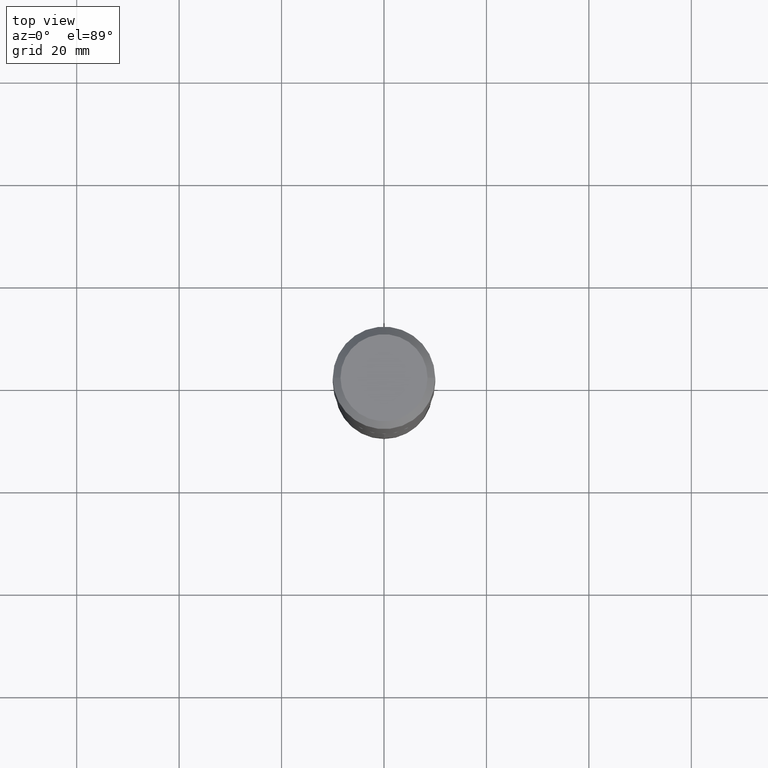
[diagram: clean part render]
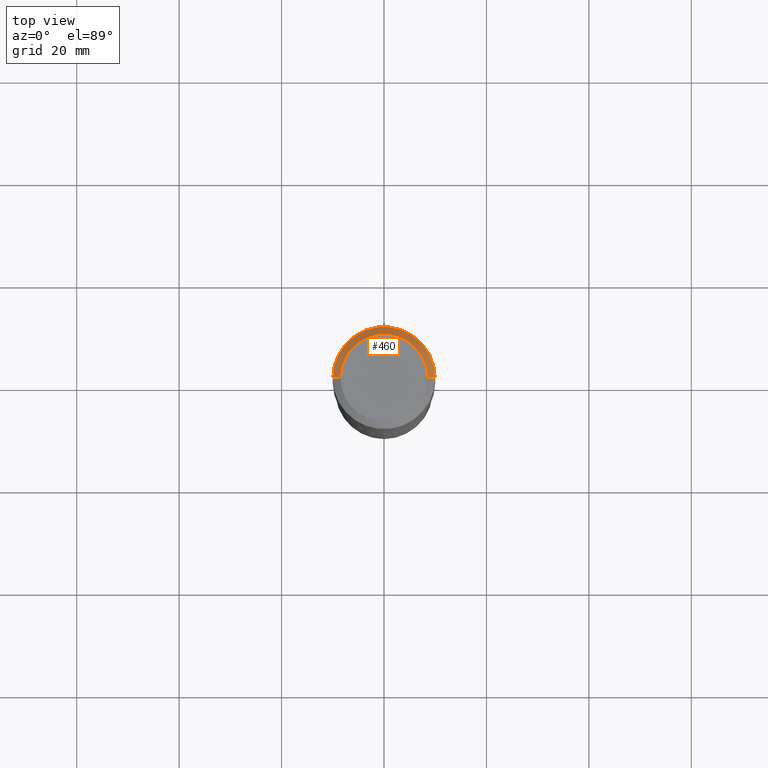
[diagram: same view with one face highlighted and labeled with its STEP entity id]
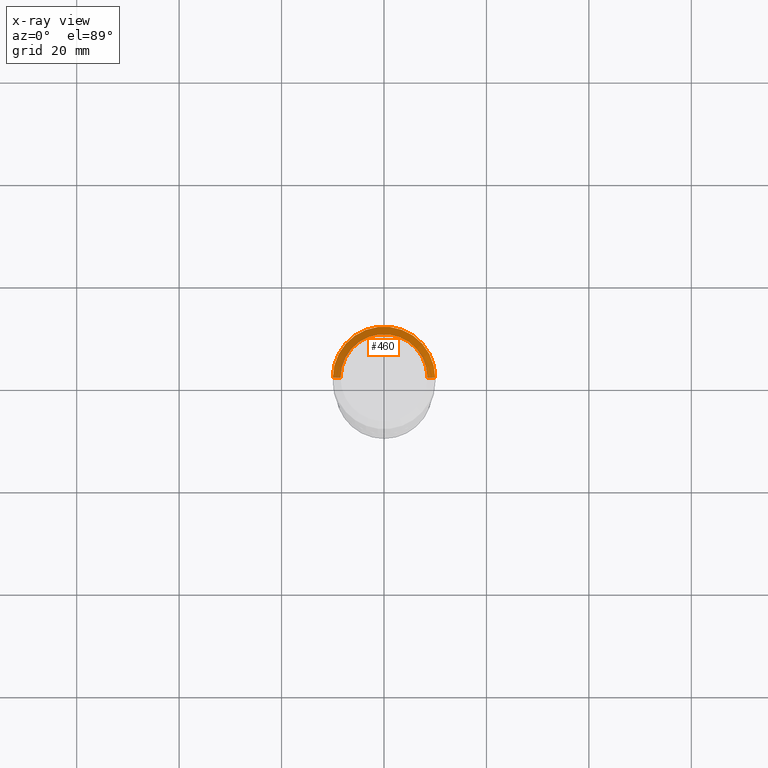
[diagram: x-ray of the same camera — body ghosted, the highlighted face saturated]
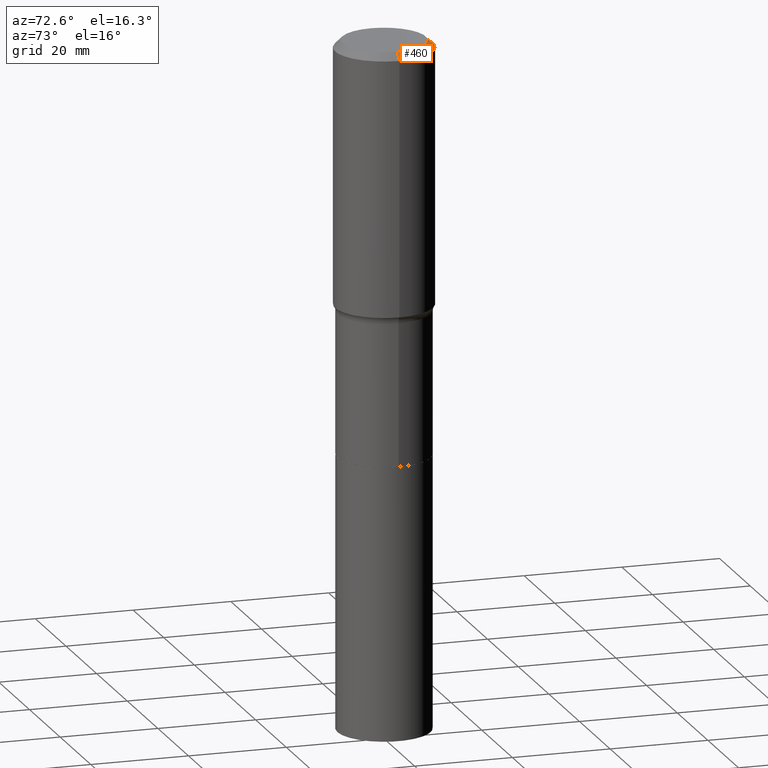
[diagram: same view with one face highlighted and labeled with its STEP entity id]
A machine part, top view. The second image highlights one B-rep face of the part: STEP entity #460.
The next image is the same camera in x-ray: the body ghosted, the highlighted face saturated — about 0% of this face is hidden behind the body in this view.
A second angle (auxiliary view) of the same face is appended — the face is thin or edge-on in the first view.
In plain terms, the highlighted conical surface has half-angle 45 deg.
Its self-contained STEP definition (entity closure, byte-faithful):
#22 = DIRECTION ( 'NONE',  ( 1.000000000000000000, -6.982962677686267499E-15, 4.876152824003125403E-29 ) ) ;
#28 = FACE_OUTER_BOUND ( 'NONE', #59, .T. ) ;
#35 = LINE ( 'NONE', #313, #211 ) ;
#36 = CARTESIAN_POINT ( 'NONE',  ( 0.3346450000000000258, -2.601499422326145188E-15, 4.096137381465387809E-18 ) ) ;
#42 = CIRCLE ( 'NONE', #270, 0.3937000000000000499 ) ;
#43 = CIRCLE ( 'NONE', #445, 0.3346450000000000258 ) ;
#44 = CARTESIAN_POINT ( 'NONE',  ( 1.444171603492641547E-30, -2.061894304653832726E-16, -0.05905500000000037109 ) ) ;
#54 = CARTESIAN_POINT ( 'NONE',  ( -0.3346450000000000258, 2.439908260507010921E-15, 4.096137381431418257E-18 ) ) ;
#59 = EDGE_LOOP ( 'NONE', ( #336, #402, #292, #306 ) ) ;
#73 = EDGE_CURVE ( 'NONE', #465, #307, #42, .T. ) ;
#96 = EDGE_CURVE ( 'NONE', #391, #465, #164, .T. ) ;
#120 = DIRECTION ( 'NONE',  ( 2.445468806185136597E-29, -3.491481338843145583E-15, -1.000000000000000000 ) ) ;
#146 = VERTEX_POINT ( 'NONE', #54 ) ;
#164 = LINE ( 'NONE', #231, #251 ) ;
#165 = CARTESIAN_POINT ( 'NONE',  ( 1.444171603492641547E-30, -2.061894304653832726E-16, -0.05905500000000037109 ) ) ;
#173 = AXIS2_PLACEMENT_3D ( 'NONE', #165, #120, #431 ) ;
#195 = DIRECTION ( 'NONE',  ( -2.445468806185136597E-29, 3.491481338843145583E-15, 1.000000000000000000 ) ) ;
#210 = CARTESIAN_POINT ( 'NONE',  ( -1.001697619218024707E-46, 1.430158722866394097E-32, 4.096137381448120692E-18 ) ) ;
#211 = VECTOR ( 'NONE', #348, 39.37007874015748143 ) ;
#231 = CARTESIAN_POINT ( 'NONE',  ( 0.3937000000000000499, -2.907167492188035412E-15, -0.05905500000000037109 ) ) ;
#251 = VECTOR ( 'NONE', #365, 39.37007874015748143 ) ;
#265 = EDGE_CURVE ( 'NONE', #391, #146, #43, .T. ) ;
#270 = AXIS2_PLACEMENT_3D ( 'NONE', #44, #195, #294 ) ;
#292 = ORIENTED_EDGE ( 'NONE', *, *, #73, .T. ) ;
#294 = DIRECTION ( 'NONE',  ( 1.000000000000000000, -6.982962677686265922E-15, 0.000000000000000000 ) ) ;
#299 = CARTESIAN_POINT ( 'NONE',  ( 0.3937000000000000499, -2.955381836670466588E-15, -0.05905500000000037109 ) ) ;
#306 = ORIENTED_EDGE ( 'NONE', *, *, #456, .F. ) ;
#307 = VERTEX_POINT ( 'NONE', #320 ) ;
#313 = CARTESIAN_POINT ( 'NONE',  ( -0.3937000000000000499, 2.543002975739700240E-15, -0.05905500000000037109 ) ) ;
#320 = CARTESIAN_POINT ( 'NONE',  ( -0.3937000000000000499, -9.942574814932580477E-16, -0.05905500000000037109 ) ) ;
#336 = ORIENTED_EDGE ( 'NONE', *, *, #265, .F. ) ;
#347 = DIRECTION ( 'NONE',  ( -2.445468806185136597E-29, 3.491481338843145583E-15, 1.000000000000000000 ) ) ;
#348 = DIRECTION ( 'NONE',  ( -0.7071067811865451302, 2.468850131082231817E-15, -0.7071067811865499042 ) ) ;
#351 = CONICAL_SURFACE ( 'NONE', #173, 0.3937000000000000499, 0.7853981633974449483 ) ;
#365 = DIRECTION ( 'NONE',  ( 0.7071067811865451302, -7.319954787623248157E-15, -0.7071067811865499042 ) ) ;
#391 = VERTEX_POINT ( 'NONE', #36 ) ;
#402 = ORIENTED_EDGE ( 'NONE', *, *, #96, .T. ) ;
#431 = DIRECTION ( 'NONE',  ( -1.000000000000000000, 6.982962677686265922E-15, 0.000000000000000000 ) ) ;
#445 = AXIS2_PLACEMENT_3D ( 'NONE', #210, #347, #22 ) ;
#456 = EDGE_CURVE ( 'NONE', #146, #307, #35, .T. ) ;
#460 = ADVANCED_FACE ( 'NONE', ( #28 ), #351, .T. ) ;
#465 = VERTEX_POINT ( 'NONE', #299 ) ;